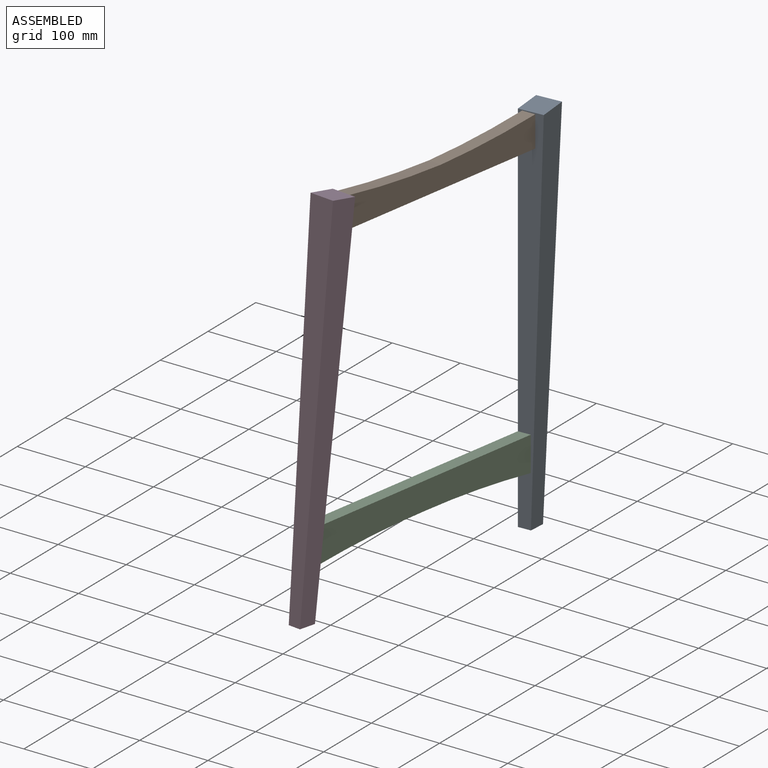
[diagram: assembled view]
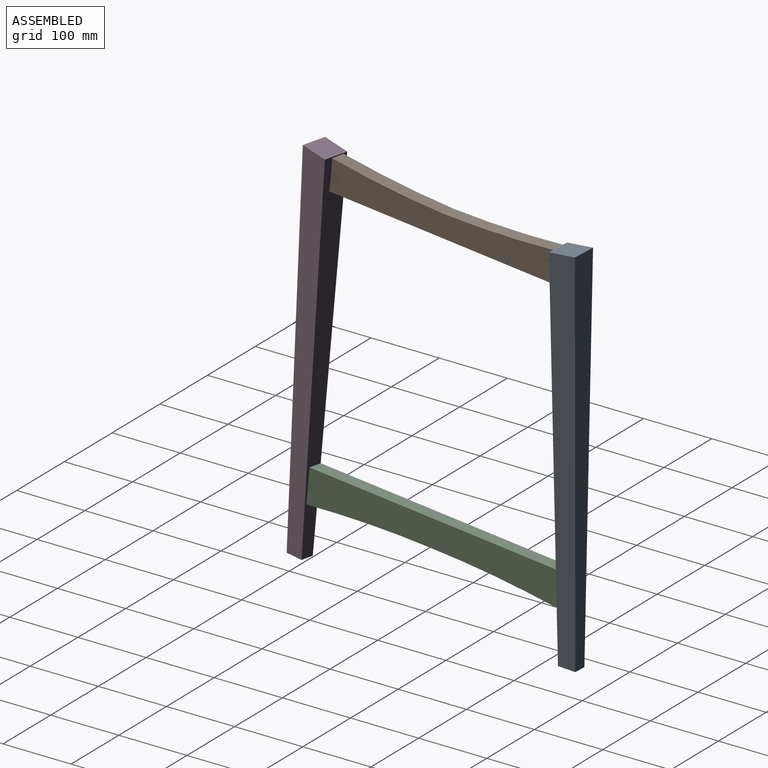
[diagram: assembled view, second angle]
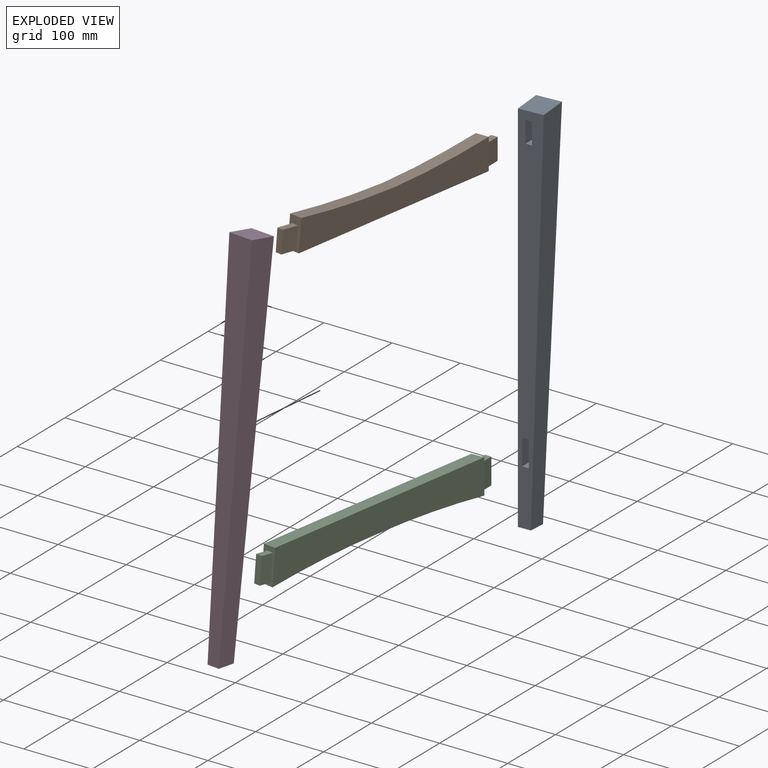
[diagram: exploded view]
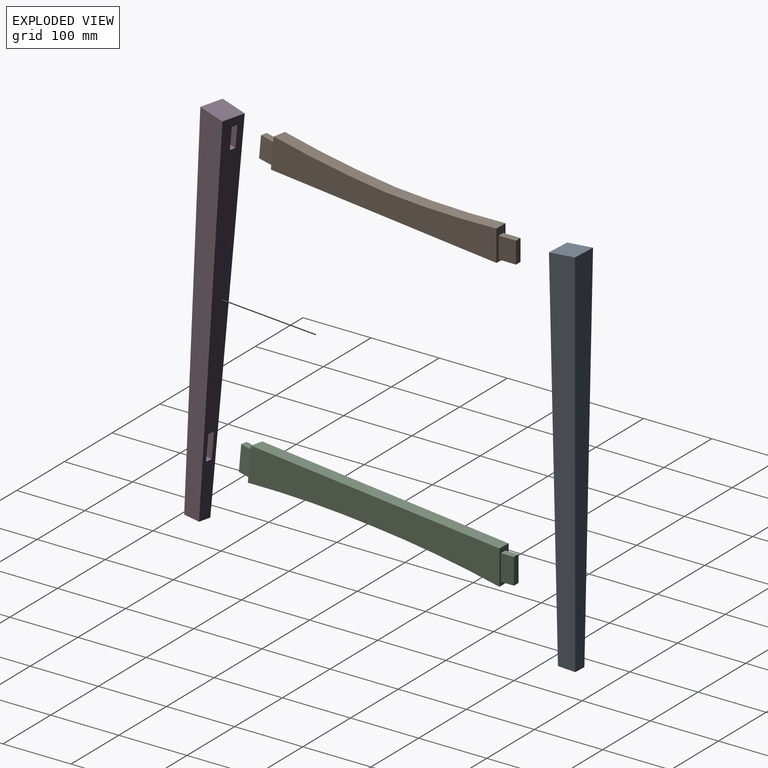
[diagram: exploded view, second angle]
ASSEMBLY  parts=4 mates=3
PART A: 16 faces, bbox 38.1x38.1x561.2 mm
  f0: plane 556.51x37.99mm, normal (0,-1,0), area 15185.5mm2, adj f2,f3,f4,f5,f6,f7,f8,f9
  f1: plane 561.18x38.1mm, normal (0,1,-0.02), area 16007.2mm2, adj f2,f3,f4,f5
  f2: plane 559.72x38.1mm, normal (-1,0,0), area 17692.1mm2, adj f0,f1,f4,f5
  f3: plane 560.68x38.1mm, normal (1,0,-0.03), area 17731.3mm2, adj f0,f1,f4,f5
  f4: plane 38.1x38.1mm, normal (-0.04,-0.09,1), area 1456.1mm2, adj f0,f1,f2,f3
  f5: plane 25.41x19.11mm, normal (0.03,-0.05,-1), area 485.8mm2, adj f0,f1,f2,f3
  f6: plane 26.99x9.53mm, normal (0,0,-1), area 257.1mm2, adj f0,f7,f9,f10
  f7: plane 31.75x26.99mm, normal (1,0,0), area 856.9mm2, adj f0,f6,f8,f10
  f8: plane 26.99x9.53mm, normal (0,0,1), area 257.1mm2, adj f0,f7,f9,f10
  f9: plane 31.75x26.99mm, normal (-1,0,0), area 856.9mm2, adj f0,f6,f8,f10
  f10: plane 31.75x9.53mm, normal (0,-1,0), area 302.4mm2, adj f6,f7,f8,f9
  f11: plane 20.64x9.53mm, normal (0,0,-1), area 196.6mm2, adj f0,f12,f14,f15
  f12: plane 38.1x20.64mm, normal (1,0,0), area 786.3mm2, adj f0,f11,f13,f15
  f13: plane 20.64x9.53mm, normal (0,0,1), area 196.6mm2, adj f0,f12,f14,f15
  f14: plane 38.1x20.64mm, normal (-1,0,0), area 786.3mm2, adj f0,f11,f13,f15
  f15: plane 38.1x9.53mm, normal (0,-1,0), area 362.9mm2, adj f11,f12,f13,f14
PART B: 17 faces, bbox 404.3x19.1x46 mm
  f0: plane 351.54x45.82mm, normal (0,1,0), area 13261.7mm2, adj f2,f3,f9,f10,f16
  f1: plane 354.88x45.44mm, normal (0,-1,0), area 13205.6mm2, adj f2,f3,f9,f10,f16
  f2: plane 354.88x19.05mm, normal (0,-0.03,-1), area 6731.9mm2, adj f0,f1,f3,f10
  f3: plane 46.04x19.05mm, normal (-0.99,0.09,0.05), area 571.3mm2, adj f0,f1,f2,f4,f5,f6,f7,f9
  f4: plane 26.12x11.75mm, normal (0.05,0,1), area 241.9mm2, adj f3,f5,f7,f8
  f5: plane 32.95x26.82mm, normal (0.09,1,0), area 806.5mm2, adj f3,f4,f6,f8
  f6: plane 26.12x11.75mm, normal (-0.05,0,-1), area 241.9mm2, adj f3,f5,f7,f8
  f7: plane 32.95x26.82mm, normal (-0.09,-1,0), area 806.5mm2, adj f3,f4,f6,f8
  f8: plane 31.75x9.49mm, normal (-0.99,0.09,0.05), area 302.4mm2, adj f4,f5,f6,f7
  f9: cylinder r=1524mm len=175.22mm, axis (0,-1,0), area 3332.3mm2, adj f0,f1,f3,f16
  f10: plane 46.04x19.05mm, normal (0.99,0.09,0.05), area 571.3mm2, adj f0,f1,f2,f11,f12,f13,f14,f16
  f11: plane 26.12x11.75mm, normal (-0.05,0,1), area 241.9mm2, adj f10,f12,f14,f15
  f12: plane 32.95x26.82mm, normal (-0.09,1,0), area 806.5mm2, adj f10,f11,f13,f15
  f13: plane 26.12x11.75mm, normal (0.05,0,-1), area 241.9mm2, adj f10,f12,f14,f15
  f14: plane 32.95x26.82mm, normal (0.09,-1,0), area 806.5mm2, adj f10,f11,f13,f15
  f15: plane 31.75x9.49mm, normal (0.99,0.09,0.05), area 302.4mm2, adj f11,f12,f13,f14
  f16: cylinder r=1524mm len=175.22mm, axis (0,-1,0), area 3332.3mm2, adj f0,f1,f9,f10
PART C: 17 faces, bbox 432.9x19.1x50.8 mm
  f0: plane 391.07x19.05mm, normal (0,0.03,1), area 7421.7mm2, adj f1,f2,f3,f10
  f1: plane 396.04x50.8mm, normal (0,-1,0), area 17107.7mm2, adj f0,f3,f9,f10,f16
  f2: plane 392.62x50.01mm, normal (0,1,0), area 16703mm2, adj f0,f3,f9,f10,f16
  f3: plane 50.8x19.05mm, normal (-0.99,0.09,0.05), area 602.3mm2, adj f0,f1,f2,f5,f6,f7,f8,f9
  f4: plane 38.1x9.49mm, normal (-0.99,0.09,0.05), area 362.9mm2, adj f5,f6,f7,f8
  f5: plane 38.98x20.81mm, normal (0.09,1,0), area 725.8mm2, adj f3,f4,f6,f7
  f6: plane 19.8x11.18mm, normal (-0.05,0,-1), area 181.5mm2, adj f3,f4,f5,f8
  f7: plane 19.8x11.18mm, normal (0.05,0,1), area 181.5mm2, adj f3,f4,f5,f8
  f8: plane 38.98x20.81mm, normal (-0.09,-1,0), area 725.8mm2, adj f3,f4,f6,f7
  f9: cylinder r=1661.65mm len=198.02mm, axis (0,-1,0), area 3763.6mm2, adj f1,f2,f3,f16
  f10: plane 50.8x19.05mm, normal (0.99,0.09,0.05), area 602.3mm2, adj f0,f1,f2,f12,f13,f14,f15,f16
  f11: plane 38.1x9.49mm, normal (0.99,0.09,0.05), area 362.9mm2, adj f12,f13,f14,f15
  f12: plane 38.98x20.81mm, normal (-0.09,1,0), area 725.8mm2, adj f10,f11,f13,f14
  f13: plane 19.8x11.18mm, normal (0.05,0,-1), area 181.5mm2, adj f10,f11,f12,f15
  f14: plane 19.8x11.18mm, normal (-0.05,0,1), area 181.5mm2, adj f10,f11,f12,f15
  f15: plane 38.98x20.81mm, normal (0.09,-1,0), area 725.8mm2, adj f10,f11,f13,f14
  f16: cylinder r=1661.65mm len=198.02mm, axis (0,-1,0), area 3763.6mm2, adj f1,f2,f9,f10
PART D: 16 faces, bbox 38.1x50.6x561.2 mm
  f0: plane 555.94x38.01mm, normal (0,1,-0.05), area 15185.5mm2, adj f2,f3,f4,f5,f6,f7,f8,f9
  f1: plane 561.18x38.1mm, normal (0,-1,0.02), area 16007.2mm2, adj f2,f3,f4,f5
  f2: plane 559.72x50.6mm, normal (-1,0,0), area 17692.1mm2, adj f0,f1,f4,f5
  f3: plane 560.68x50.61mm, normal (1,0,-0.03), area 17731.3mm2, adj f0,f1,f4,f5
  f4: plane 38.1x37.91mm, normal (-0.04,0.13,0.99), area 1456.1mm2, adj f0,f1,f2,f3
  f5: plane 25.44x19.16mm, normal (0.03,0.01,-1), area 485.8mm2, adj f0,f1,f2,f3
  f6: plane 26.98x9.57mm, normal (0,-0.05,-1), area 257.1mm2, adj f0,f7,f9,f10
  f7: plane 32.94x28.4mm, normal (1,0,0), area 856.9mm2, adj f0,f6,f8,f10
  f8: plane 26.98x9.57mm, normal (0,0.05,1), area 257.1mm2, adj f0,f7,f9,f10
  f9: plane 32.94x28.4mm, normal (-1,0,0), area 856.9mm2, adj f0,f6,f8,f10
  f10: plane 31.72x9.53mm, normal (0,1,-0.05), area 302.4mm2, adj f6,f7,f8,f9
  f11: plane 20.63x9.56mm, normal (0,-0.05,-1), area 196.6mm2, adj f0,f12,f14,f15
  f12: plane 39x22.34mm, normal (1,0,0), area 786.3mm2, adj f0,f11,f13,f15
  f13: plane 20.63x9.56mm, normal (0,0.05,1), area 196.6mm2, adj f0,f12,f14,f15
  f14: plane 39x22.34mm, normal (-1,0,0), area 786.3mm2, adj f0,f11,f13,f15
  f15: plane 38.06x9.53mm, normal (0,1,-0.05), area 362.9mm2, adj f11,f12,f13,f14
PLACE A t=(-41.13,-45.2,-32.18)mm
PLACE B rot(axis=(-0.02,0.03,1),84.9deg) t=(-59.93,-238.84,228.34)mm
PLACE C rot(axis=(-0.02,0.03,1),84.9deg) t=(-68.2,-259.17,-199.8)mm
PLACE D rot(axis=(-0.29,-0.02,-0.96),10.5deg) t=(-82.37,-482.17,-10.06)mm
MATE fastened D.f0 <-> C.f3  axis (0.18,0.98,-0.1) through (-83.9,-454.5,-191.22)mm
MATE fastened B.f10 <-> A.f0  axis (0,-1,0) through (-44.31,-64.25,215.86)mm
MATE fastened C.f10 <-> A.f0  axis (0,-1,0) through (-49.07,-64.25,-210.38)mm
